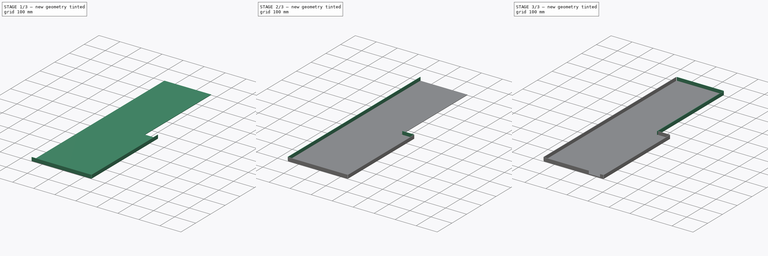
[diagram: build sequence overview — one tinted view per stage of 3, left to right]
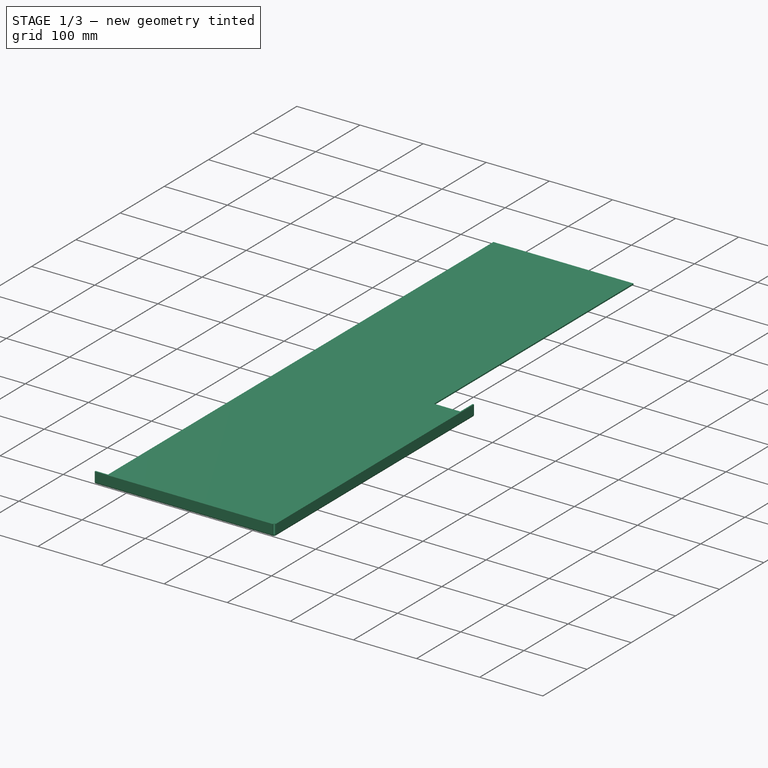
[diagram: stage 1 of 3 — iso view after this stage's code; geometry added in this stage tinted green]
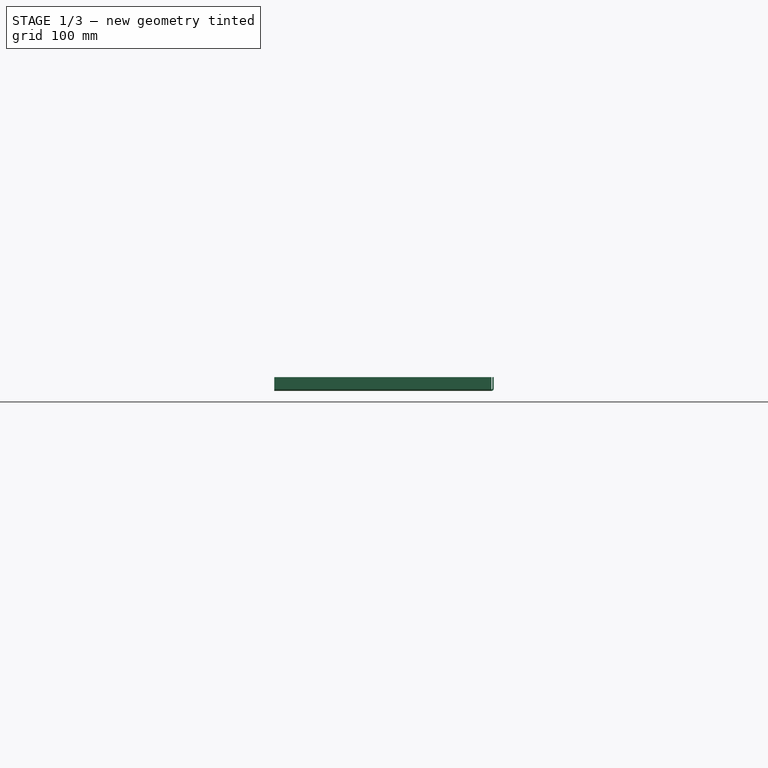
[diagram: stage 1 of 3 — front view after this stage's code; geometry added in this stage tinted green]
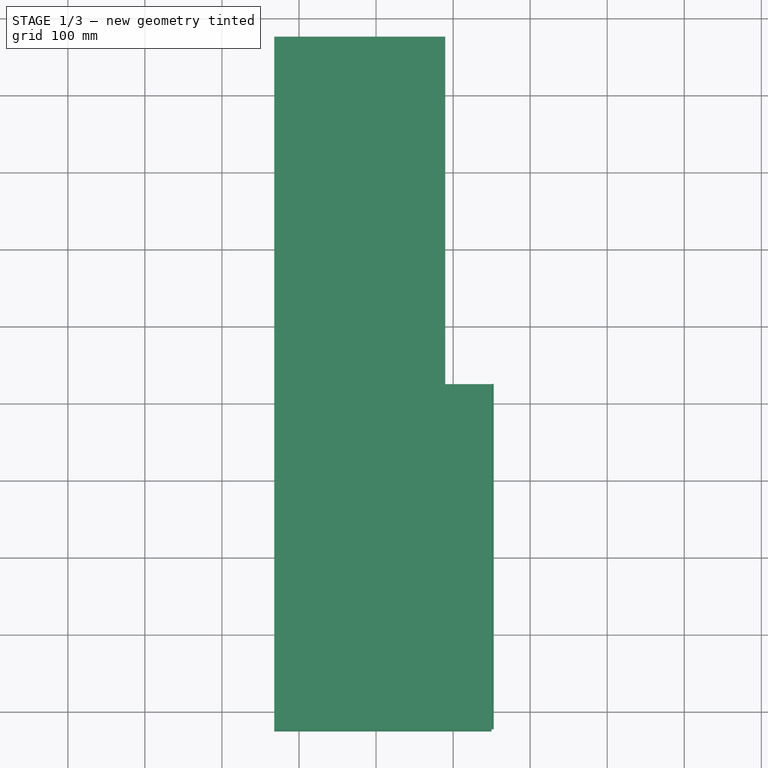
[diagram: stage 1 of 3 — top view after this stage's code; geometry added in this stage tinted green]
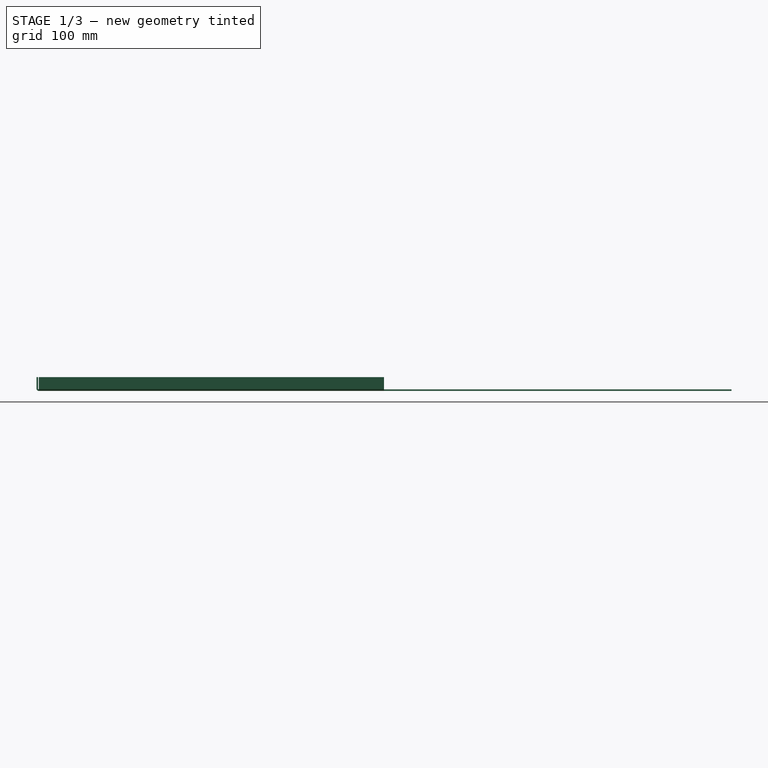
[diagram: stage 1 of 3 — right view after this stage's code; geometry added in this stage tinted green]
FCSTD DOCUMENT  (FreeCAD 0.16R6698 (Git))
Label: Bottom peau pliée
License: All rights reserved
LicenseURL: http://en.wikipedia.org/wiki/All_rights_reserved
objects: Part::FeaturePython×6, Sketcher::SketchObject×2, PartDesign::Pad×1, PartDesign::Pocket×1
note: 12 computed .brp shape members not serialized (recipe doc carries the construction recipe); baked Part::Feature solids carry a one-line shape summary decoded from their .brp

FEATURE [Sketcher::SketchObject] Sketch
  sketch-geometry (6):
    g0: LineSegment StartX=-132.18 StartY=476.651 StartZ=0 EndX=89.8201 EndY=476.651 EndZ=0
    g1: LineSegment StartX=89.8201 StartY=476.651 StartZ=0 EndX=89.8201 EndY=25.6505 EndZ=0
    g2: LineSegment StartX=149.82 StartY=-422.349 StartZ=0 EndX=-132.18 EndY=-422.349 EndZ=0
    g3: LineSegment StartX=-132.18 StartY=-422.349 StartZ=0 EndX=-132.18 EndY=476.651 EndZ=0
    g4: LineSegment StartX=149.82 StartY=-422.349 StartZ=0 EndX=149.82 EndY=25.6505 EndZ=0
    g5: LineSegment StartX=149.82 StartY=25.6505 StartZ=0 EndX=89.8201 EndY=25.6505 EndZ=0
  constraints (17):
    c: Coincident(g0,g1)
    c: Coincident(g2,g3)
    c: Coincident(g3,g0)
    c: Horizontal(g0)
    c: Horizontal(g2)
    c: Vertical(g1)
    c: Vertical(g3)
    c: Coincident(g4,g5)
    c: Horizontal(g5)
    c: Vertical(g4)
    c: PointOnObject(g1,g5)
    c: Coincident(g2,g4)
    c: DistanceX(g2,g2) = 282
    c: DistanceX(g5,g5) = 60
    c: Coincident(g5,g1)
    c: DistanceY(g3,g3) = 899
    c: DistanceY(g4,g4) = 448
FEATURE [PartDesign::Pad] Pad
  Length = 2
  Length2 = 100
  Sketch = -> Sketch
  Type = 0
FEATURE [Part::FeaturePython] Bend  # WARN: FeaturePython — macro-defined, semantics opaque (R4)
  angle = 90
  baseObject = -> Pad [Face1]
  gap1 = 0
  gap2 = 0
  invert = false
  length = 15
  radius = 1
  reliefd = 1
  reliefw = 0.5
FEATURE [Part::FeaturePython] Bend001  # WARN: FeaturePython — macro-defined, semantics opaque (R4)
  angle = 90
  baseObject = -> Bend [Face10]
  gap1 = 0
  gap2 = 0
  invert = false
  length = 15
  radius = 1
  reliefd = 1
  reliefw = 0.5
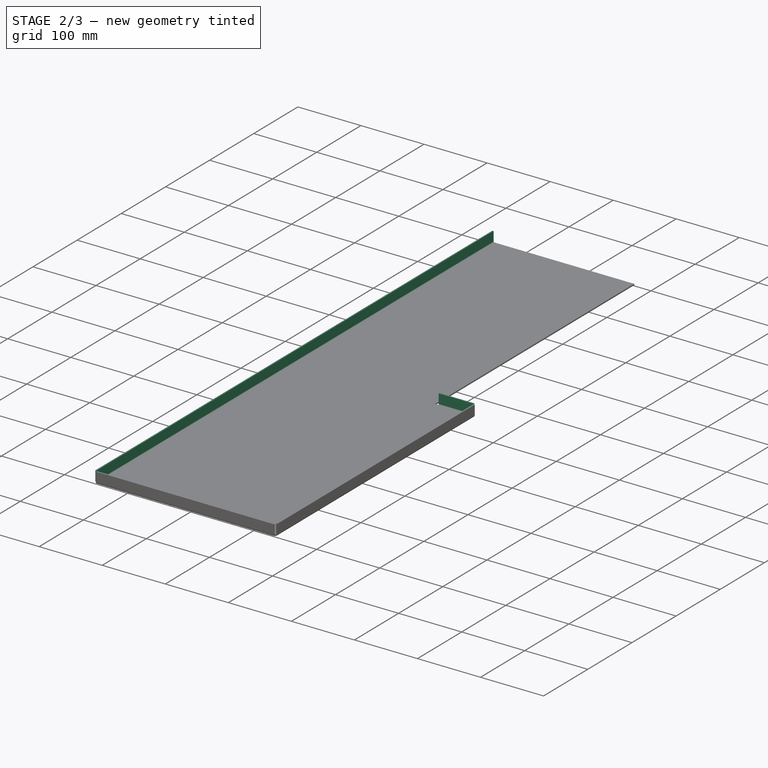
[diagram: stage 2 of 3 — iso view after this stage's code; geometry added in this stage tinted green]
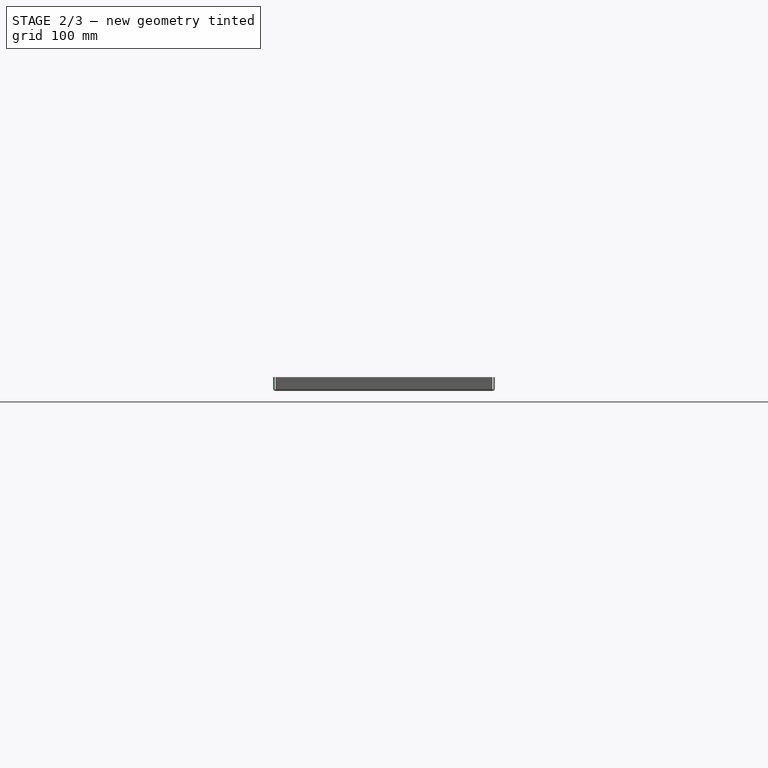
[diagram: stage 2 of 3 — front view after this stage's code; geometry added in this stage tinted green]
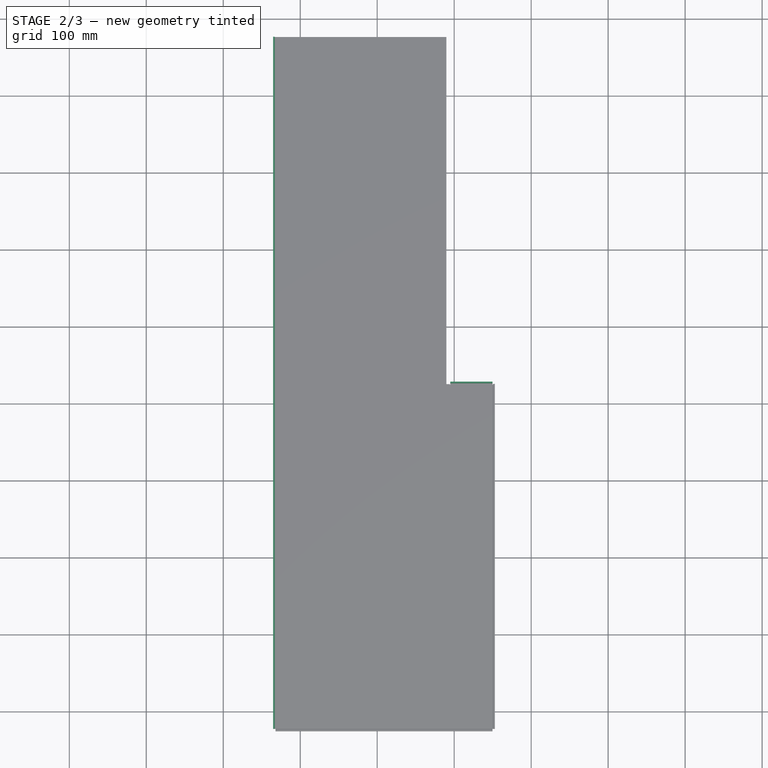
[diagram: stage 2 of 3 — top view after this stage's code; geometry added in this stage tinted green]
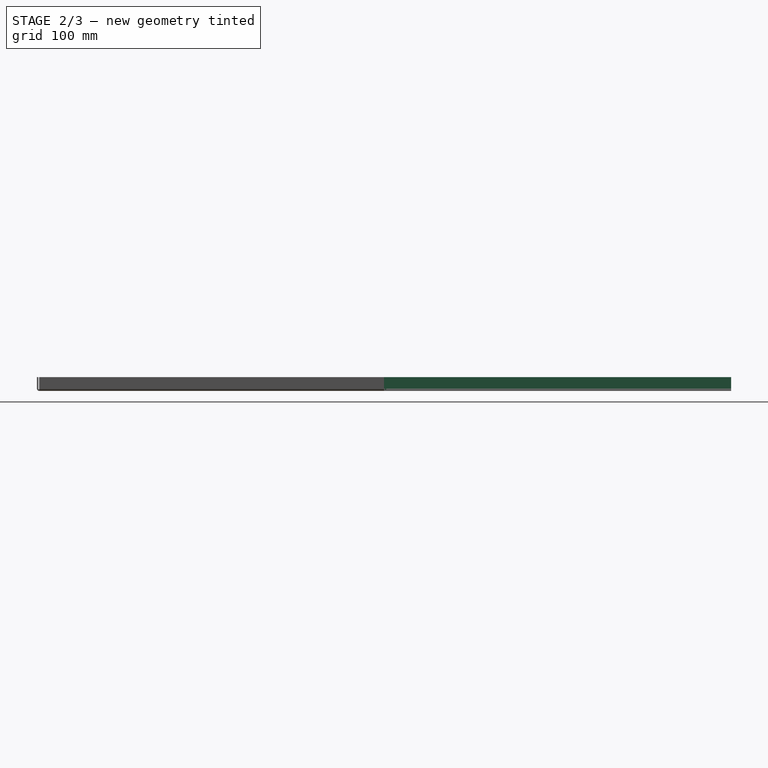
[diagram: stage 2 of 3 — right view after this stage's code; geometry added in this stage tinted green]
FEATURE [Part::FeaturePython] Bend002  # WARN: FeaturePython — macro-defined, semantics opaque (R4)
  angle = 90
  baseObject = -> Bend001 [Face18]
  gap1 = 0
  gap2 = 0
  invert = false
  length = 15
  radius = 1
  reliefd = 1
  reliefw = 0.5
FEATURE [Part::FeaturePython] Bend003  # WARN: FeaturePython — macro-defined, semantics opaque (R4)
  angle = 90
  baseObject = -> Bend002 [Face18]
  gap1 = 0
  gap2 = 5
  invert = false
  length = 15
  radius = 1
  reliefd = 1
  reliefw = 0.5
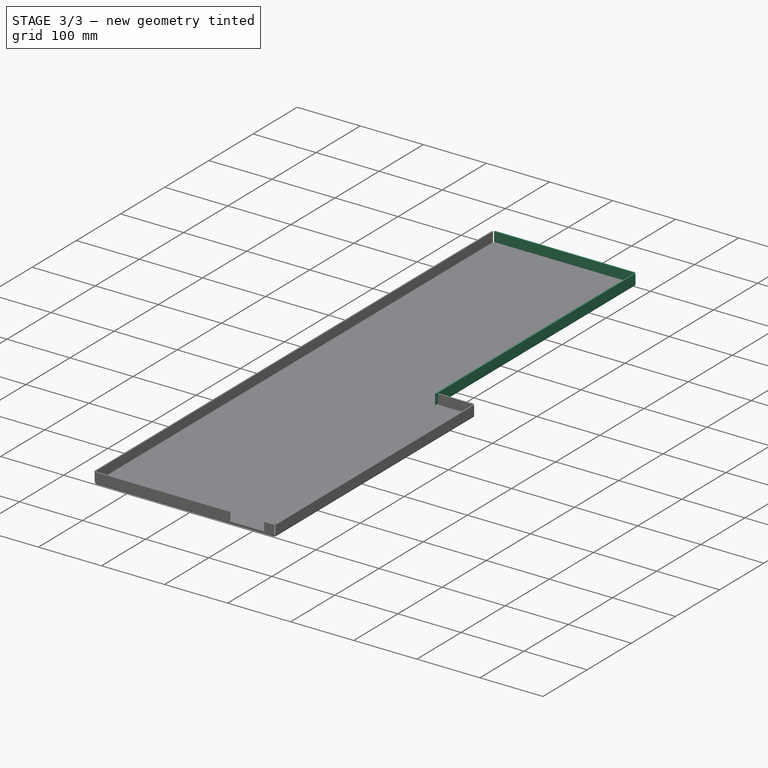
[diagram: stage 3 of 3 — iso view after this stage's code; geometry added in this stage tinted green]
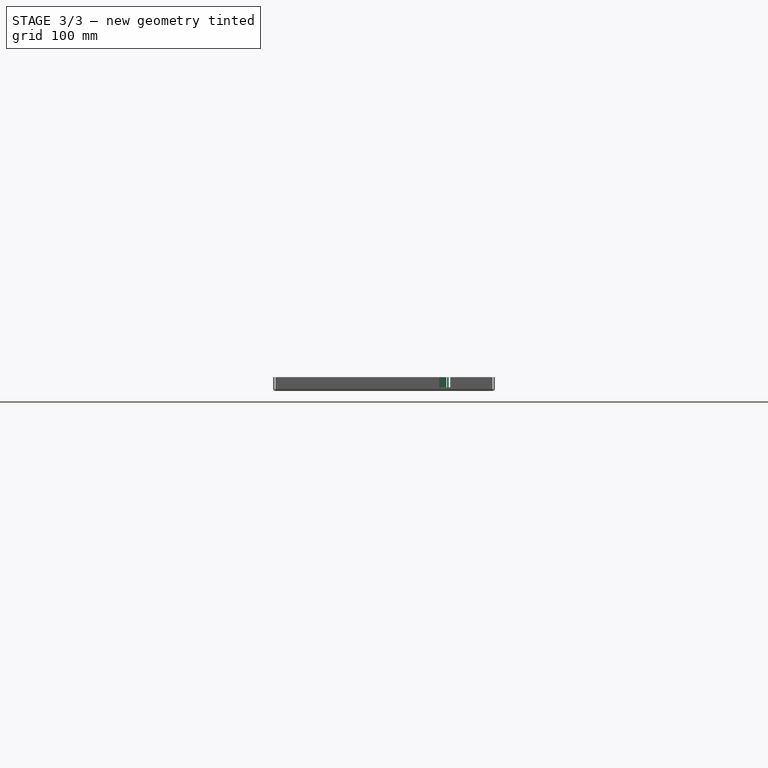
[diagram: stage 3 of 3 — front view after this stage's code; geometry added in this stage tinted green]
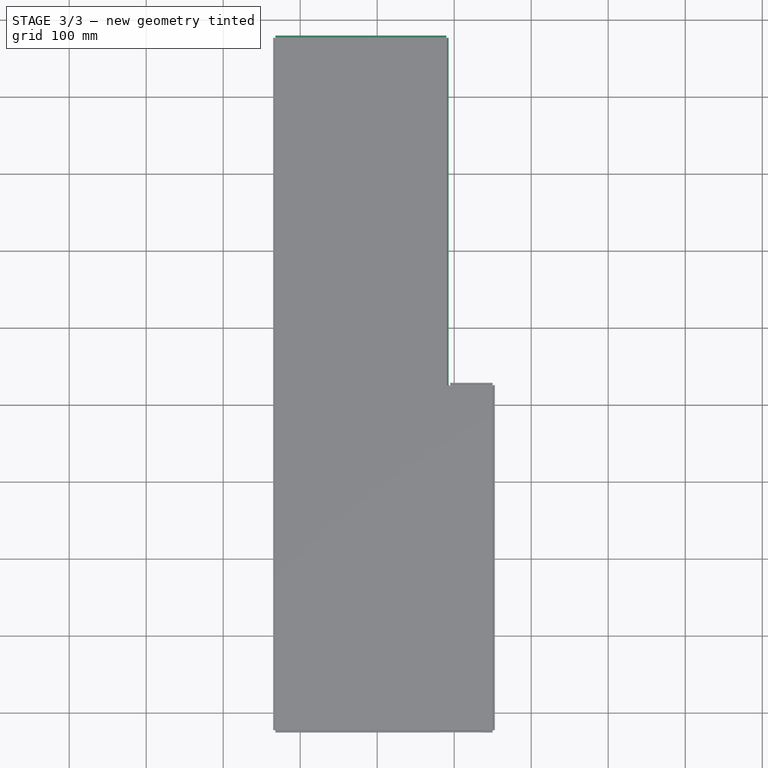
[diagram: stage 3 of 3 — top view after this stage's code; geometry added in this stage tinted green]
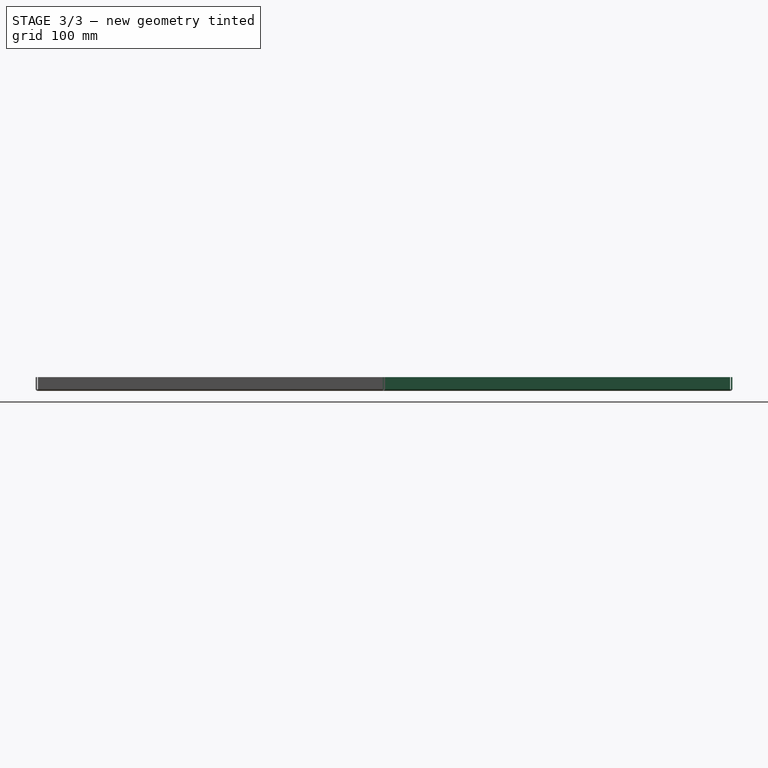
[diagram: stage 3 of 3 — right view after this stage's code; geometry added in this stage tinted green]
FEATURE [Part::FeaturePython] Bend004  # WARN: FeaturePython — macro-defined, semantics opaque (R4)
  angle = 90
  baseObject = -> Bend003 [Face19]
  gap1 = 0
  gap2 = 0
  invert = false
  length = 15
  radius = 1
  reliefd = 1
  reliefw = 0.5
FEATURE [Part::FeaturePython] Bend005  # WARN: FeaturePython — macro-defined, semantics opaque (R4)
  angle = 90
  baseObject = -> Bend004 [Face10]
  gap1 = 0
  gap2 = 0
  invert = false
  length = 15
  radius = 1
  reliefd = 1
  reliefw = 0.5
FEATURE [Sketcher::SketchObject] Sketch001
  Placement = pos=(0,-425.349,0) rot=(1,0,0;1.5708rad)
  Support = -> Bend005 [Face40]
  sketch-geometry (4):
    g0: LineSegment StartX=135.537 StartY=4.56169 StartZ=0 EndX=80.5368 EndY=4.56169 EndZ=0
    g1: LineSegment StartX=80.5368 StartY=4.56169 StartZ=0 EndX=80.5368 EndY=25.1847 EndZ=0
    g2: LineSegment StartX=80.5368 StartY=25.1847 StartZ=0 EndX=135.537 EndY=25.1847 EndZ=0
    g3: LineSegment StartX=135.537 StartY=25.1847 StartZ=0 EndX=135.537 EndY=4.56169 EndZ=0
  constraints (9):
    c: Coincident(g0,g1)
    c: Coincident(g1,g2)
    c: Coincident(g2,g3)
    c: Coincident(g3,g0)
    c: Horizontal(g0)
    c: Horizontal(g2)
    c: Vertical(g1)
    c: Vertical(g3)
    c: DistanceX(g2,g2) = 55
FEATURE [PartDesign::Pocket] Pocket
  Length = 5
  Sketch = -> Sketch001
  Type = 0
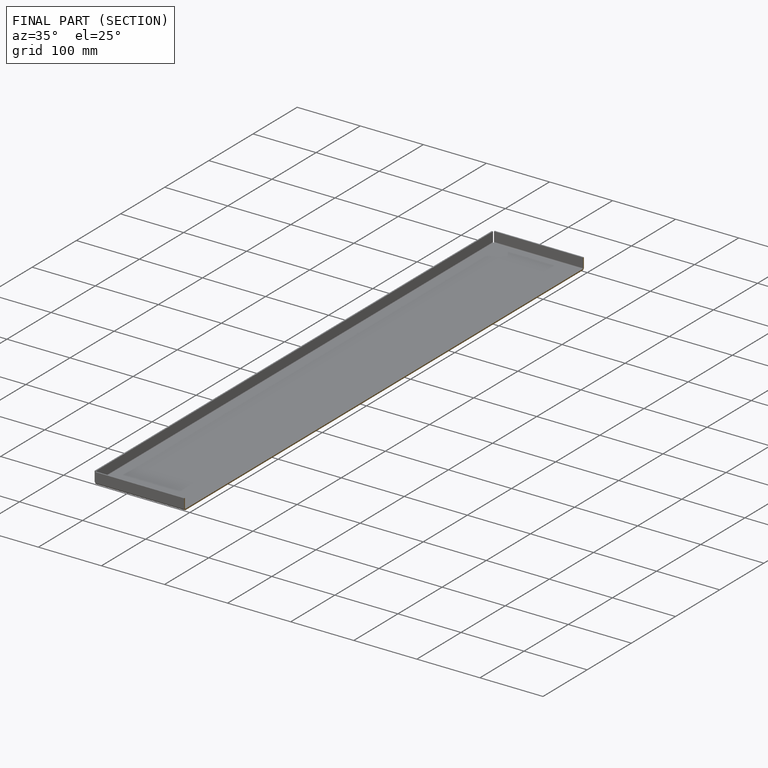
[diagram: finished part — half-section view (interior)]
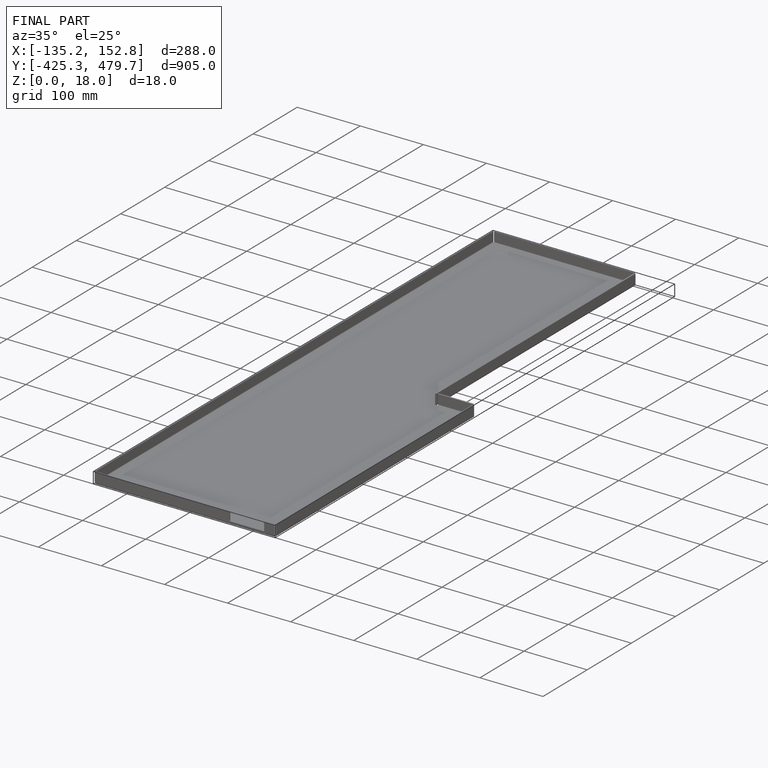
[diagram: finished part — iso view with bounding-box wireframe]
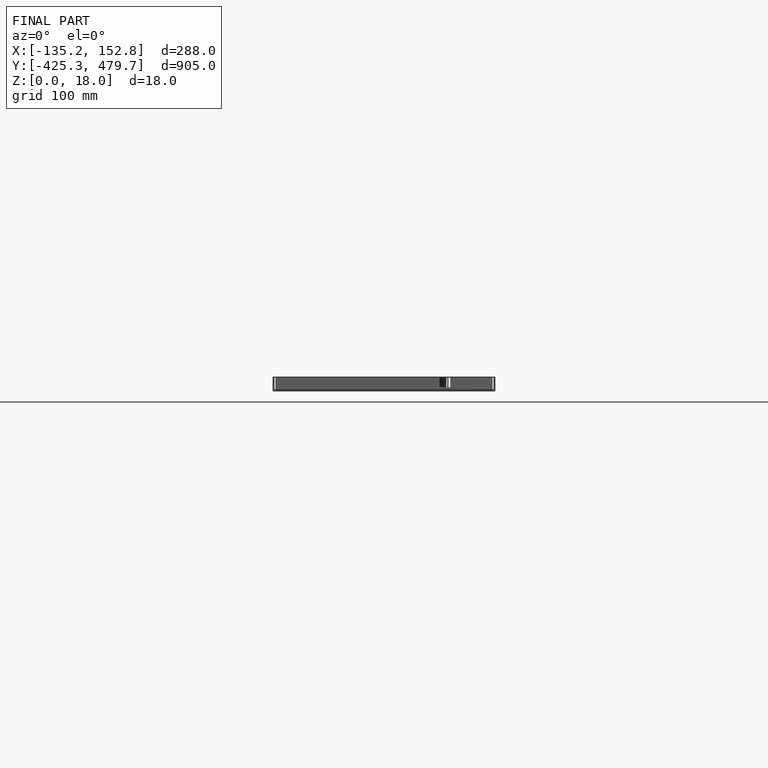
[diagram: finished part — front view with bounding-box wireframe]
